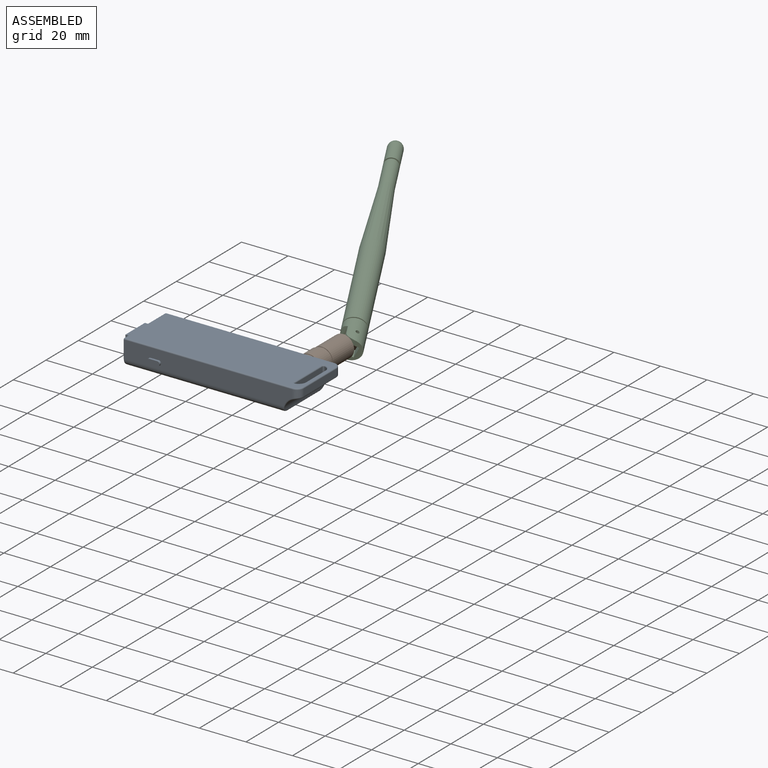
[diagram: assembled view]
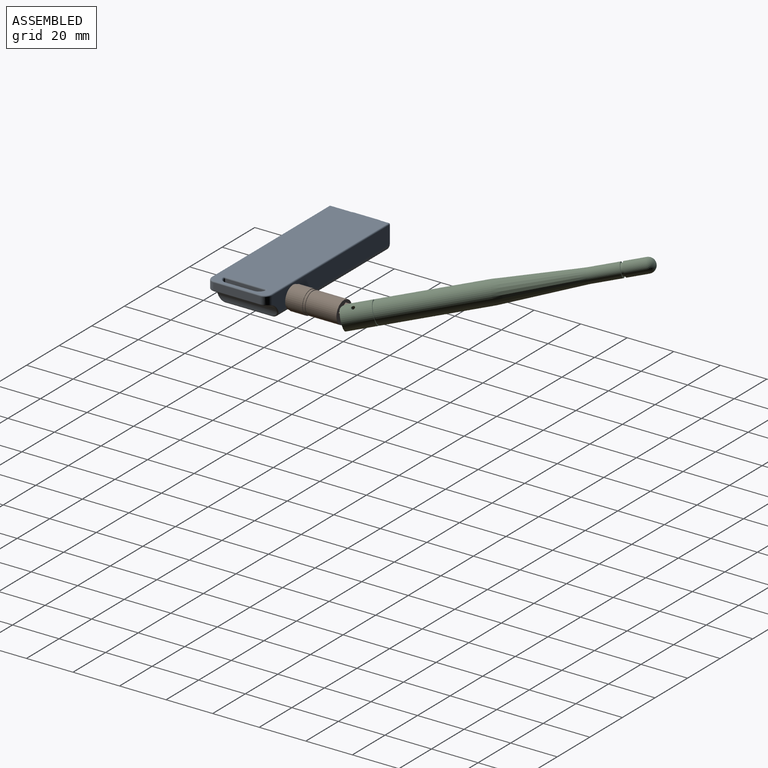
[diagram: assembled view, second angle]
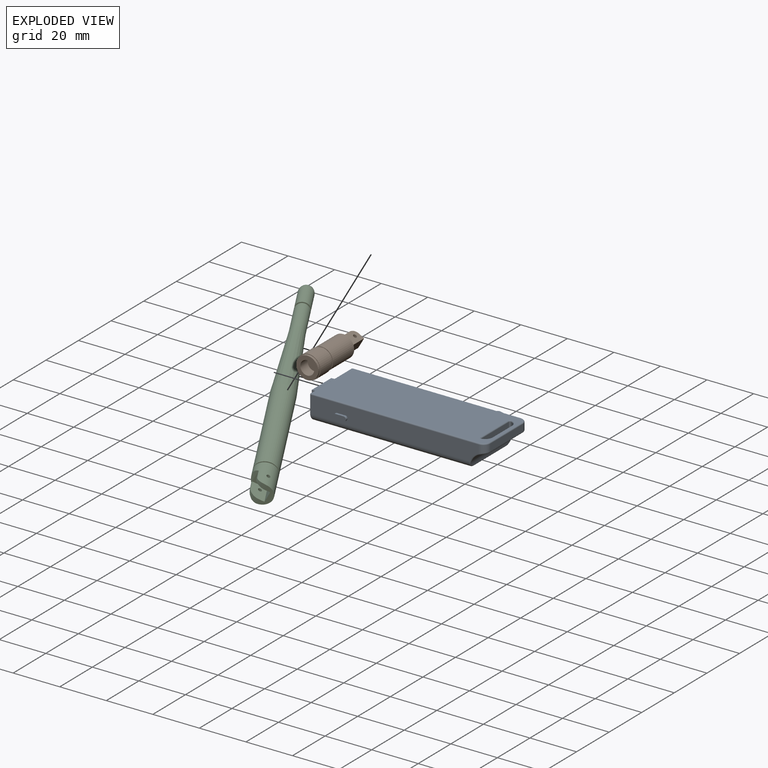
[diagram: exploded view]
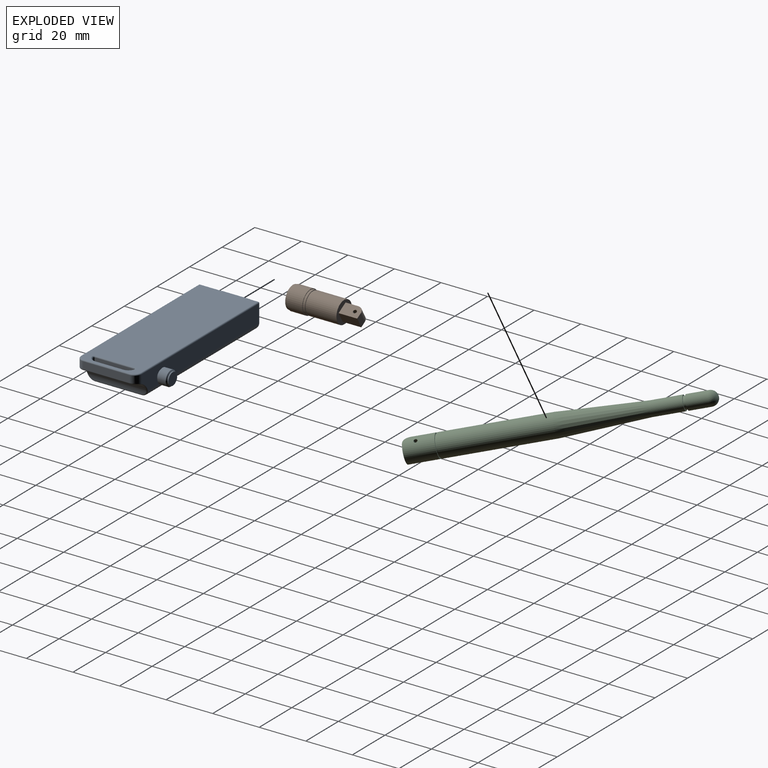
[diagram: exploded view, second angle]
ASSEMBLY  parts=3 mates=2
PART A: 66 faces, bbox 79.7x32x11.2 mm
  f0: plane 72x7.5mm, normal (0,-1,0), area 520.4mm2, adj f16,f18,f24,f30,f31,f61,f62,f63
  f1: plane 25x10mm, normal (-1,0,0), area 192.1mm2, adj f8,f9,f10,f11,f31,f34,f36,f37
  f2: plane 72x7.5mm, normal (0,1,0), area 511mm2, adj f17,f19,f23,f35,f40,f60
  f3: plane 12x3.15mm, normal (-1,0,0), area 37.8mm2, adj f14,f15,f41,f54
  f4: plane 16.9x5.4mm, normal (1,0,0), area 91.3mm2, adj f44,f47,f48,f49
  f5: plane 20x3.02mm, normal (1,0,0), area 60.3mm2, adj f16,f17,f20,f29
  f6: plane 74.5x25mm, normal (0,0,1), area 1789.6mm2, adj f28,f29,f30,f32,f35,f36,f41,f42
  f7: plane 67.52x20mm, normal (0,0,-1), area 1350.3mm2, adj f18,f19,f27,f37
  f8: plane 4.6x4mm, normal (0,1,0), area 18.4mm2, adj f1,f9,f11,f12
  f9: plane 12x4mm, normal (0,0,-1), area 48mm2, adj f1,f8,f10,f12
  f10: plane 4.6x4mm, normal (0,-1,0), area 18.4mm2, adj f1,f9,f11,f12
  f11: plane 12x4mm, normal (0,0,1), area 48mm2, adj f1,f8,f10,f12
  f12: plane 12x4.6mm, normal (-1,0,0), area 55.2mm2, adj f8,f9,f10,f11
  f13: cylinder r=7mm len=25mm, axis (0,-1,0), area 169.6mm2, adj f20,f21,f22,f23,f24,f25,f26,f27
  f14: cylinder r=3mm len=4.36mm, axis (0,0,-1), area 14.3mm2, adj f3,f42,f47,f52
  f15: cylinder r=3mm len=4.36mm, axis (0,0,1), area 14.3mm2, adj f3,f43,f48,f53
  f16: cylinder r=3mm len=3.63mm, axis (0,0,1), area 15mm2, adj f0,f5,f22,f28
  f17: cylinder r=3mm len=3.63mm, axis (0,0,-1), area 15mm2, adj f2,f5,f21,f32
  f18: cylinder r=3mm len=68.13mm, axis (1,0,0), area 318.9mm2, adj f0,f7,f26,f34
  f19: cylinder r=3mm len=68.13mm, axis (-1,0,0), area 318.9mm2, adj f2,f7,f25,f39
  f20: cylinder r=0.5mm len=20mm, axis (0,-1,0), area 15mm2, adj f5,f13,f21,f22
  f21: bspline ~3.73x3.68mm, area 3.3mm2, adj f13,f17,f20,f23
  f22: bspline ~3.73x3.68mm, area 3.3mm2, adj f13,f16,f20,f24
  f23: torus R=7.5mm, axis (0,1,0), area 4.2mm2, adj f2,f13,f21,f25
  f24: torus R=7.5mm, axis (0,1,0), area 4.2mm2, adj f0,f13,f22,f26
  f25: bspline ~3.73x3.68mm, area 3.3mm2, adj f13,f19,f23,f27
  f26: bspline ~3.73x3.68mm, area 3.3mm2, adj f13,f18,f24,f27
  f27: cylinder r=0.5mm len=20mm, axis (0,-1,0), area 15mm2, adj f7,f13,f25,f26
  f28: torus R=2.5mm, axis (0,0,1), area 3.5mm2, adj f6,f16,f29,f30
  f29: cylinder r=0.5mm len=20mm, axis (0,-1,0), area 15.7mm2, adj f5,f6,f28,f32
  f30: cylinder r=0.5mm len=72mm, axis (-1,0,0), area 56.5mm2, adj f0,f6,f28,f33
  f31: cylinder r=0.5mm len=7.5mm, axis (0,0,-1), area 5.9mm2, adj f0,f1,f33,f34
  f32: torus R=2.5mm, axis (0,0,1), area 3.5mm2, adj f6,f17,f29,f35
  f33: sphere r=0.5mm, area 0.4mm2, adj f30,f31,f36
  f34: torus R=2.5mm, axis (1,0,0), area 3.5mm2, adj f1,f18,f31,f37
  f35: cylinder r=0.5mm len=72mm, axis (1,0,0), area 56.5mm2, adj f2,f6,f32,f38
  f36: cylinder r=0.5mm len=25mm, axis (0,1,0), area 19.6mm2, adj f1,f6,f33,f38
  f37: cylinder r=0.5mm len=20mm, axis (0,-1,0), area 15.7mm2, adj f1,f7,f34,f39
  f38: sphere r=0.5mm, area 0.4mm2, adj f35,f36,f40
  f39: torus R=2.5mm, axis (1,0,0), area 3.5mm2, adj f1,f19,f37,f40
  f40: cylinder r=0.5mm len=7.5mm, axis (0,0,1), area 5.9mm2, adj f1,f2,f38,f39
  f41: cylinder r=0.5mm len=12mm, axis (0,1,0), area 9.4mm2, adj f3,f6,f42,f43
  f42: torus R=3.5mm, axis (0,0,1), area 3.4mm2, adj f6,f14,f41,f45
  f43: torus R=3.5mm, axis (0,0,1), area 3.4mm2, adj f6,f15,f41,f46
  f44: cylinder r=0.5mm len=16.9mm, axis (0,-1,0), area 13.3mm2, adj f4,f6,f45,f46
  f45: torus R=1mm, axis (0,0,1), area 0.9mm2, adj f6,f42,f44,f47
  f46: torus R=1mm, axis (0,0,1), area 0.9mm2, adj f6,f43,f44,f48
  f47: cylinder r=0.5mm len=5.4mm, axis (0,0,-1), area 4.4mm2, adj f4,f14,f45,f50
  f48: cylinder r=0.5mm len=5.4mm, axis (0,0,1), area 4.4mm2, adj f4,f15,f46,f51
  f49: cylinder r=0.5mm len=16.9mm, axis (0,-1,0), area 6.3mm2, adj f4,f13,f50,f51
  f50: bspline ~1.54x1.33mm, area 0.9mm2, adj f13,f47,f49,f52
  f51: bspline ~1.48x1.25mm, area 0.9mm2, adj f13,f48,f49,f53
  f52: bspline ~3.67x3.22mm, area 4mm2, adj f13,f14,f50,f54
  f53: bspline ~4.24x3.22mm, area 4mm2, adj f13,f15,f51,f54
  f54: cylinder r=0.5mm len=12mm, axis (0,-1,0), area 10.6mm2, adj f3,f13,f52,f53
  f55: plane 5.3x5.3mm, normal (0,1,0), area 22.1mm2, adj f56
  f56: cylinder r=2.65mm len=5.3mm, axis (0,-1,0), area 8.3mm2, adj f55,f57
  f57: cone r=2.65mm half-angle=60deg, axis (0,-1,0), area 11.7mm2, adj f56,f58
  f58: cylinder r=3.2mm len=6.4mm, axis (0,-1,0), area 71.9mm2, adj f57,f59
  f59: cone r=3.2mm half-angle=60deg, axis (0,1,0), area 14.5mm2, adj f58,f60
  f60: cylinder r=2.5mm len=5mm, axis (0,-1,0), area 3.1mm2, adj f2,f59
  f61: plane 3.5x1mm, normal (0,0,-1), area 3.5mm2, adj f0,f62,f64,f65
  f62: cylinder r=1mm len=2mm, axis (0,1,0), area 3.1mm2, adj f0,f61,f63,f65
  f63: plane 3.5x1mm, normal (0,0,1), area 3.5mm2, adj f0,f62,f64,f65
  f64: cylinder r=1mm len=2mm, axis (0,1,0), area 3.1mm2, adj f0,f61,f63,f65
  f65: plane 5.5x2mm, normal (0,-1,0), area 10.1mm2, adj f61,f62,f63,f64
PART B: 20 faces, bbox 10x30x10 mm
  f0: plane 9.5x9.5mm, normal (0,1,0), area 45.9mm2, adj f1,f13,f14,f15,f16
  f1: cylinder r=4.75mm len=13mm, axis (0,1,0), area 388mm2, adj f0,f2
  f2: plane 9.5x9.5mm, normal (0,-1,0), area 7.3mm2, adj f1,f3
  f3: cylinder r=4.5mm len=9mm, axis (0,1,0), area 14.1mm2, adj f2,f4
  f4: plane 9.5x9.5mm, normal (0,1,0), area 7.3mm2, adj f3,f5
  f5: cylinder r=4.75mm len=9.5mm, axis (0,1,0), area 29.8mm2, adj f4,f6
  f6: plane 10x10mm, normal (0,1,0), area 7.7mm2, adj f5,f7
  f7: cylinder r=5mm len=10mm, axis (0,1,0), area 204.2mm2, adj f6,f8
  f8: plane 10x10mm, normal (0,-1,0), area 7.7mm2, adj f7,f9
  f9: cylinder r=4.75mm len=9.5mm, axis (0,1,0), area 29.8mm2, adj f8,f10
  f10: plane 9.5x9.5mm, normal (0,-1,0), area 42.6mm2, adj f9,f11
  f11: cylinder r=3mm len=6mm, axis (0,1,0), area 84.8mm2, adj f10,f12
  f12: plane 6x6mm, normal (0,-1,0), area 28.3mm2, adj f11
  f13: plane 5.5x5mm, normal (-1,0,0), area 27.5mm2, adj f0,f14,f16,f18
  f14: plane 8x5mm, normal (0,0,1), area 36.9mm2, adj f0,f13,f15,f17,f18,f19
  f15: plane 8x5mm, normal (1,0,0), area 40mm2, adj f0,f14,f16,f17
  f16: plane 8x5mm, normal (0,0,-1), area 36.9mm2, adj f0,f13,f15,f17,f18,f19
  f17: plane 5x2.5mm, normal (0,1,0), area 12.5mm2, adj f14,f15,f16,f18
  f18: cylinder r=2.5mm len=5mm, axis (0,0,-1), area 19.6mm2, adj f13,f14,f16,f17
  f19: cylinder r=0.75mm len=5mm, axis (0,0,1), area 23.6mm2, adj f14,f16
PART C: 24 faces, bbox 9.5x115x9.5 mm
  f0: cylinder r=4.75mm len=12mm, axis (0,-1,0), area 287.3mm2, adj f1,f15,f17,f18,f19,f20,f21,f22
  f1: plane 9.45x4.25mm, normal (0,-1,0), area 20.7mm2, adj f0,f2,f4,f16,f18,f20
  f2: plane 7.5x6mm, normal (0,0,1), area 39.8mm2, adj f1,f3,f16,f20,f21,f23
  f3: plane 6x5mm, normal (0,-1,0), area 30mm2, adj f2,f4,f16,f22
  f4: plane 7.5x6mm, normal (0,0,-1), area 39.8mm2, adj f1,f3,f16,f17,f18,f19
  f5: sphere r=3mm, area 56.5mm2, adj f6
  f6: cylinder r=3mm len=8.5mm, axis (0,-1,0), area 160.2mm2, adj f5,f7
  f7: plane 6x6mm, normal (0,-1,0), area 8.6mm2, adj f6,f8
  f8: cylinder r=2.5mm len=5mm, axis (0,-1,0), area 15.7mm2, adj f7,f9
  f9: plane 6x6mm, normal (0,1,0), area 8.6mm2, adj f8,f10
  f10: cylinder r=3mm len=12.5mm, axis (0,-1,0), area 235.6mm2, adj f9,f11
  f11: cone r=4.75mm half-angle=2.9deg, axis (0,-1,0), area 841.1mm2, adj f10,f12
  f12: cylinder r=4.75mm len=43mm, axis (0,-1,0), area 1283.3mm2, adj f11,f13
  f13: plane 9.5x9.5mm, normal (0,-1,0), area 14.1mm2, adj f12,f14
  f14: cylinder r=4.25mm len=8.5mm, axis (0,-1,0), area 13.4mm2, adj f13,f15
  f15: plane 9.5x9.5mm, normal (0,1,0), area 14.1mm2, adj f0,f14
  f16: plane 7.5x5mm, normal (-1,0,0), area 37.5mm2, adj f1,f2,f3,f4
  f17: cylinder r=0.75mm len=2.25mm, axis (0,0,1), area 10.5mm2, adj f0,f4
  f18: cylinder r=4mm len=4mm, axis (0,0,1), area 9.9mm2, adj f0,f1,f4,f19
  f19: plane 3.5x0.71mm, normal (-1,0,0), area 2.5mm2, adj f0,f4,f18,f22
  f20: cylinder r=4mm len=4mm, axis (0,0,1), area 9.9mm2, adj f0,f1,f2,f21
  f21: plane 3.5x0.71mm, normal (-1,0,0), area 2.5mm2, adj f0,f2,f20,f22
  f22: plane 6.42x1.25mm, normal (-0.71,-0.71,0), area 7.8mm2, adj f0,f3,f19,f21
  f23: cylinder r=0.75mm len=2.25mm, axis (0,0,1), area 10.5mm2, adj f0,f2
PLACE A t=(6.38,-0.68,3.4)mm fixed
PLACE B rot(axis=(0,1,0),30deg) t=(12.29,-0.68,36.45)mm
PLACE C rot(axis=(0.19,0.69,0.69),42.2deg) t=(38.99,-27.05,21.04)mm
MATE revolute B.f1 <-> A.f56  axis (0,-1,0) through (71,20.67,8.9)mm
MATE revolute C.f17 <-> B.f19  axis (0.5,0,0.87) through (71,43.67,8.9)mm
